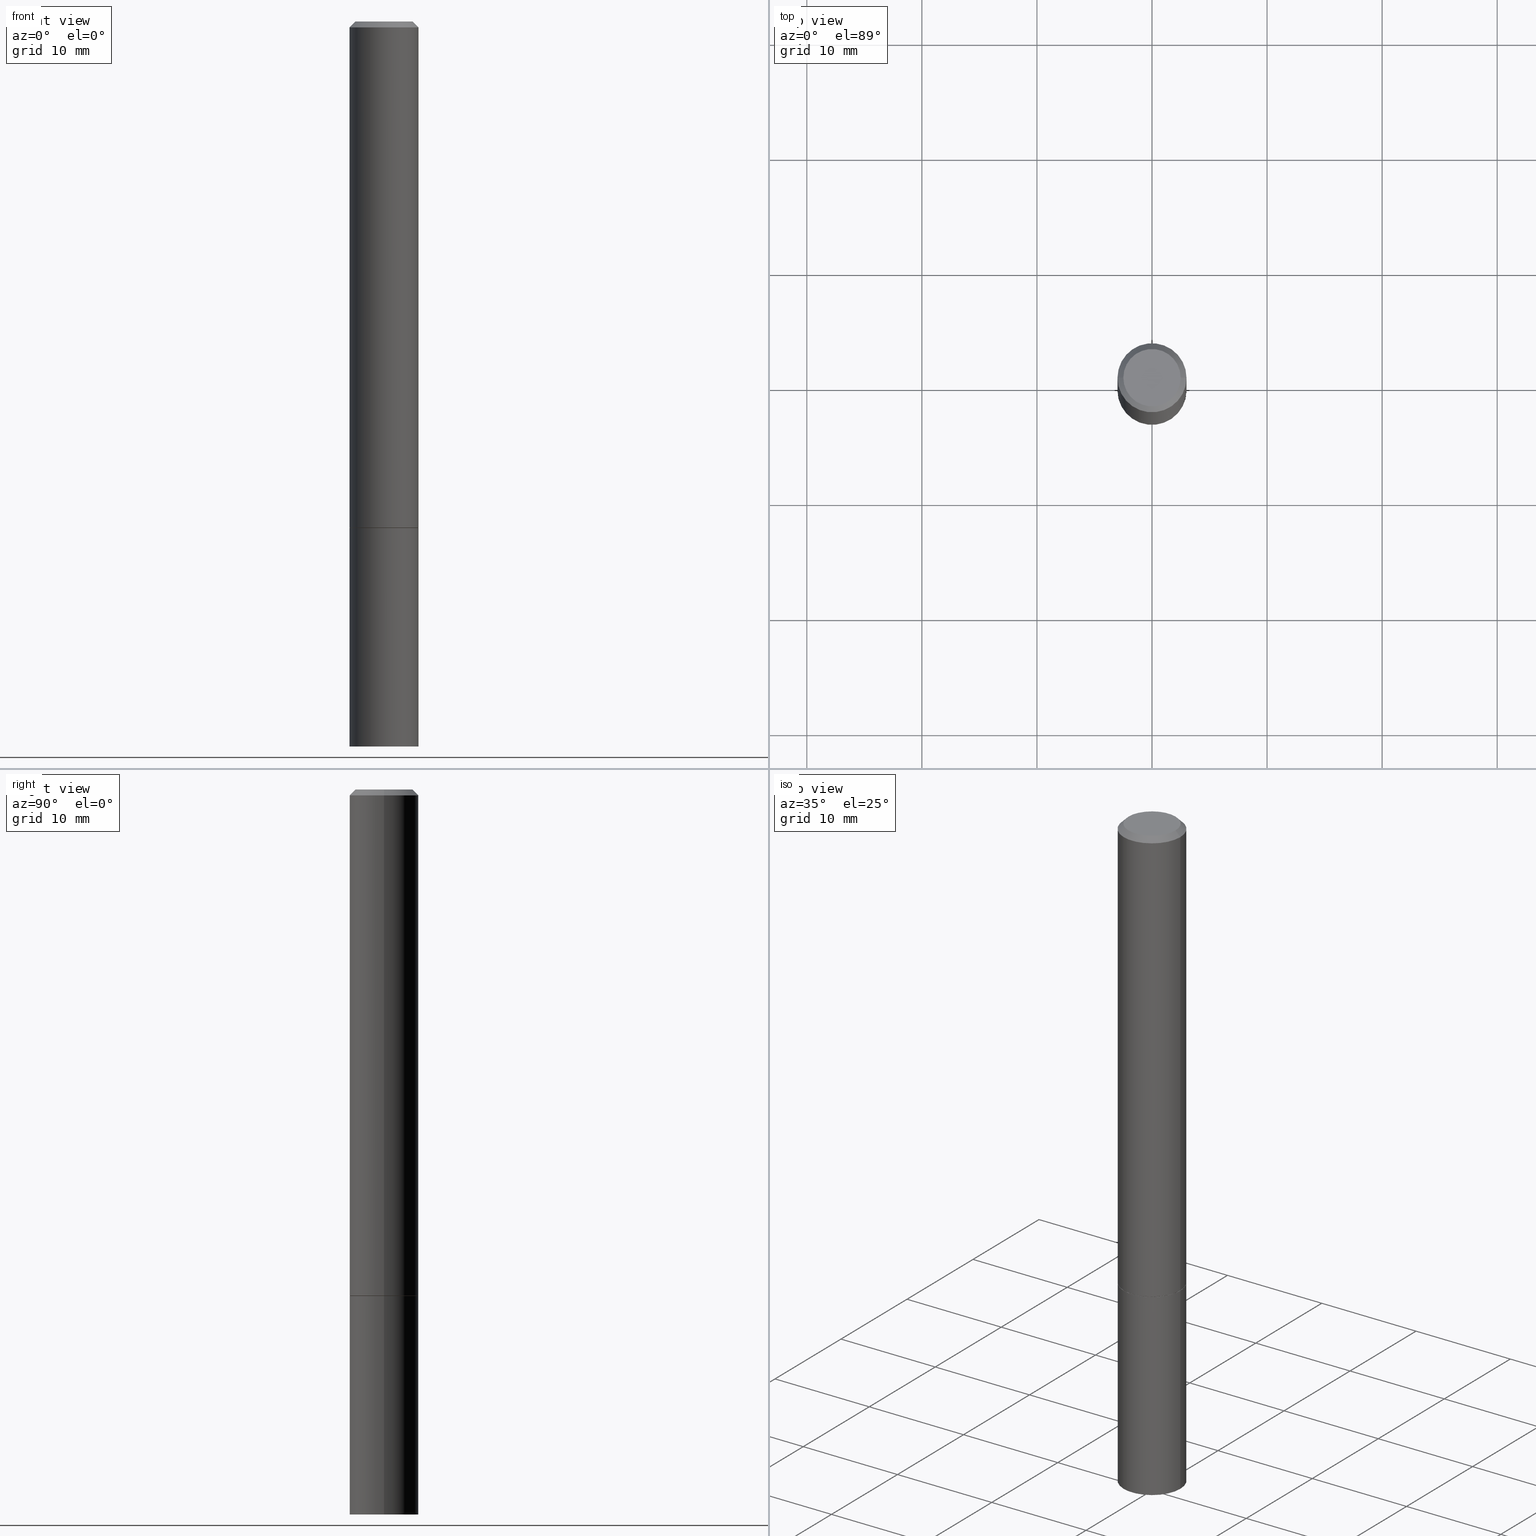
[diagram: canonical four-view strip — front | top / right | iso, engineering-drawing reading convention]
A machine part, canonical four-view strip (front | top / right | iso — engineering-drawing reading convention). The complete STEP part file that produces these views, byte-faithful:
ISO-10303-21;
HEADER;
FILE_DESCRIPTION (( 'STEP AP203' ),
    '1' );
FILE_NAME ('45100.STEP',
    '2024-02-28T08:50:11',
    ( '' ),
    ( '' ),
    'SwSTEP 2.0',
    'SolidWorks 2023',
    '' );
FILE_SCHEMA (( 'CONFIG_CONTROL_DESIGN' ));
ENDSEC;

DATA;
#1 = ORIENTED_EDGE ( 'NONE', *, *, #19, .T. ) ;
#2 =( NAMED_UNIT ( * ) PLANE_ANGLE_UNIT ( ) SI_UNIT ( $, .RADIAN. ) );
#3 = MANIFOLD_SOLID_BREP ( 'Body-Move/Copy2[2]', #141 ) ;
#4 = ORIENTED_EDGE ( 'NONE', *, *, #328, .F. ) ;
#5 = DIRECTION ( 'NONE',  ( 1.000000000000000000, -6.982962677686266711E-15, 4.876176775795935793E-29 ) ) ;
#6 = CARTESIAN_POINT ( 'NONE',  ( 0.1181000000000000383, -9.484609056967403598E-15, -2.480300000000000171 ) ) ;
#7 = EDGE_CURVE ( 'NONE', #196, #22, #40, .T. ) ;
#8 =( NAMED_UNIT ( * ) SI_UNIT ( $, .STERADIAN. ) SOLID_ANGLE_UNIT ( ) );
#9 = CARTESIAN_POINT ( 'NONE',  ( 4.890937612370304688E-31, -6.982962677686337215E-17, -0.02000000000000013226 ) ) ;
#10 = SECURITY_CLASSIFICATION_LEVEL ( 'unclassified' ) ;
#11 = AXIS2_PLACEMENT_3D ( 'NONE', #316, #186, #152 ) ;
#12 = MECHANICAL_CONTEXT ( 'NONE', #164, 'mechanical' ) ;
#13 = ORIENTED_EDGE ( 'NONE', *, *, #221, .F. ) ;
#14 = PLANE ( 'NONE',  #167 ) ;
#15 = CARTESIAN_POINT ( 'NONE',  ( -0.1181000000000000383, -2.218164663425320121E-15, -1.731300000000000283 ) ) ;
#16 = CONICAL_SURFACE ( 'NONE', #102, 0.1180999999999998301, 0.7853981633974477239 ) ;
#17 = CIRCLE ( 'NONE', #227, 0.09809999999999977072 ) ;
#18 = CARTESIAN_POINT ( 'NONE',  ( 1.148236555768741665E-45, -1.639377487418492057E-31, -4.695363739110452099E-17 ) ) ;
#19 = EDGE_CURVE ( 'NONE', #294, #112, #90, .T. ) ;
#20 = EDGE_CURVE ( 'NONE', #307, #296, #280, .T. ) ;
#21 = DIRECTION ( 'NONE',  ( -1.000000000000000000, 6.982962677686266711E-15, 0.000000000000000000 ) ) ;
#22 = VERTEX_POINT ( 'NONE', #243 ) ;
#23 = CARTESIAN_POINT ( 'NONE',  ( 1.148236555768741665E-45, -1.639377487418492057E-31, -4.695363739110452099E-17 ) ) ;
#24 = DIRECTION ( 'NONE',  ( -2.445468806185136597E-29, 3.491481338843145583E-15, 1.000000000000000000 ) ) ;
#25 = CONICAL_SURFACE ( 'NONE', #260, 0.1180999999999998301, 0.7853981633974477239 ) ;
#26 = EDGE_CURVE ( 'NONE', #22, #196, #123, .T. ) ;
#27 = EDGE_LOOP ( 'NONE', ( #300, #66, #256, #366 ) ) ;
#28 = DIRECTION ( 'NONE',  ( 1.000000000000000000, -6.982962677686266711E-15, 0.000000000000000000 ) ) ;
#29 = DATE_AND_TIME ( #207, #69 ) ;
#30 = ORIENTED_EDGE ( 'NONE', *, *, #230, .T. ) ;
#31 = VECTOR ( 'NONE', #43, 39.37007874015748143 ) ;
#32 = VECTOR ( 'NONE', #246, 39.37007874015748143 ) ;
#33 = PERSON_AND_ORGANIZATION ( #188, #354 ) ;
#34 = APPROVAL_STATUS ( 'not_yet_approved' ) ;
#35 = DIRECTION ( 'NONE',  ( -2.445468806185136877E-29, 3.491481338843145188E-15, 1.000000000000000000 ) ) ;
#36 = CC_DESIGN_APPROVAL ( #101, ( #257 ) ) ;
#37 = PERSON_AND_ORGANIZATION_ROLE ( 'design_owner' ) ;
#38 = APPROVAL_DATE_TIME ( #179, #361 ) ;
#39 = DIRECTION ( 'NONE',  ( -2.445468806185136597E-29, 3.491481338843145583E-15, 1.000000000000000000 ) ) ;
#40 = CIRCLE ( 'NONE', #157, 0.1180999999999998301 ) ;
#41 = CARTESIAN_POINT ( 'NONE',  ( -0.1181000000000000383, -6.514956173072641193E-15, -1.732300000000000617 ) ) ;
#42 = EDGE_CURVE ( 'NONE', #296, #311, #321, .T. ) ;
#43 = DIRECTION ( 'NONE',  ( -0.7071067811864267805, 7.493145998869918709E-15, 0.7071067811866682540 ) ) ;
#44 = AXIS2_PLACEMENT_3D ( 'NONE', #74, #233, #79 ) ;
#45 = DIRECTION ( 'NONE',  ( -1.000000000000000000, 6.982962677686265922E-15, -4.876176775795935793E-29 ) ) ;
#46 = CC_DESIGN_PERSON_AND_ORGANIZATION_ASSIGNMENT ( #171, #351, ( #257 ) ) ;
#47 =( LENGTH_UNIT ( ) NAMED_UNIT ( * ) SI_UNIT ( $, .METRE. ) );
#48 = DIRECTION ( 'NONE',  ( 1.000000000000000000, -6.982962677686262766E-15, 0.000000000000000000 ) ) ;
#49 = ADVANCED_FACE ( 'NONE', ( #53 ), #145, .T. ) ;
#50 = AXIS2_PLACEMENT_3D ( 'NONE', #55, #178, #365 ) ;
#51 = EDGE_LOOP ( 'NONE', ( #242, #213 ) ) ;
#52 = ORIENTED_EDGE ( 'NONE', *, *, #67, .T. ) ;
#53 = FACE_OUTER_BOUND ( 'NONE', #195, .T. ) ;
#54 = EDGE_CURVE ( 'NONE', #73, #204, #214, .T. ) ;
#55 = CARTESIAN_POINT ( 'NONE',  ( 4.236285612954513513E-29, -6.048293123277983445E-15, -1.732300000000000617 ) ) ;
#56 = LOCAL_TIME ( 3, 50, 11.00000000000000000, #87 ) ;
#57 = APPLICATION_CONTEXT ( 'configuration controlled 3d designs of mechanical parts and assemblies' ) ;
#58 = DESIGN_CONTEXT ( 'detailed design', #57, 'design' ) ;
#59 = DIRECTION ( 'NONE',  ( 2.438088387897960049E-29, -3.491481338843145188E-15, -1.000000000000000000 ) ) ;
#60 = DIRECTION ( 'NONE',  ( 1.000000000000000000, -6.982962677686266711E-15, 0.000000000000000000 ) ) ;
#61 = CALENDAR_DATE ( 2024, 28, 2 ) ;
#62 = CC_DESIGN_PERSON_AND_ORGANIZATION_ASSIGNMENT ( #271, #299, ( #261 ) ) ;
#63 = DIRECTION ( 'NONE',  ( -2.445468806185136597E-29, 3.491481338843145583E-15, 1.000000000000000000 ) ) ;
#64 = COORDINATED_UNIVERSAL_TIME_OFFSET ( 5, 0, .BEHIND. ) ;
#65 = CARTESIAN_POINT ( 'NONE',  ( 4.236285612954513513E-29, -6.048293123277983445E-15, -1.732300000000000617 ) ) ;
#66 = ORIENTED_EDGE ( 'NONE', *, *, #292, .T. ) ;
#67 = EDGE_CURVE ( 'NONE', #311, #353, #345, .T. ) ;
#68 = CONICAL_SURFACE ( 'NONE', #293, 0.1171000000000000235, 0.7853981633972775267 ) ;
#69 = LOCAL_TIME ( 3, 50, 11.00000000000000000, #295 ) ;
#70 = CARTESIAN_POINT ( 'NONE',  ( 0.1181000000000000383, -6.872981015512730918E-15, -1.732300000000000617 ) ) ;
#71 = ADVANCED_FACE ( 'NONE', ( #166 ), #25, .T. ) ;
#72 = CARTESIAN_POINT ( 'NONE',  ( 4.890937612370304688E-31, -6.982962677686337215E-17, -0.02000000000000013226 ) ) ;
#73 = VERTEX_POINT ( 'NONE', #319 ) ;
#74 = CARTESIAN_POINT ( 'NONE',  ( 0.000000000000000000, 0.000000000000000000, 0.000000000000000000 ) ) ;
#75 = DIRECTION ( 'NONE',  ( 2.445468806185136597E-29, -3.491481338843145583E-15, -1.000000000000000000 ) ) ;
#76 = ADVANCED_FACE ( 'NONE', ( #360 ), #16, .T. ) ;
#77 = ORIENTED_EDGE ( 'NONE', *, *, #137, .F. ) ;
#78 = EDGE_LOOP ( 'NONE', ( #115, #100, #344, #138 ) ) ;
#79 = DIRECTION ( 'NONE',  ( 1.000000000000000000, -6.982962677686266711E-15, 4.876176775795935793E-29 ) ) ;
#80 = CC_DESIGN_APPROVAL ( #156, ( #208 ) ) ;
#81 = CARTESIAN_POINT ( 'NONE',  ( 4.236285612954513513E-29, -6.048293123277983445E-15, -1.732300000000000617 ) ) ;
#82 = APPROVAL_ROLE ( '' ) ;
#83 = CARTESIAN_POINT ( 'NONE',  ( 6.850286386810210746E-16, 0.09809999999999977072, -3.659911380360640180E-16 ) ) ;
#84 = PRODUCT_RELATED_PRODUCT_CATEGORY ( 'detail', '', ( #183 ) ) ;
#85 = VECTOR ( 'NONE', #127, 39.37007874015748143 ) ;
#86 = CIRCLE ( 'NONE', #282, 0.1171000000000000235 ) ;
#87 = COORDINATED_UNIVERSAL_TIME_OFFSET ( 5, 0, .BEHIND. ) ;
#88 = PRODUCT_DEFINITION_SHAPE ( 'NONE', 'NONE',  #257 ) ;
#89 = ORIENTED_EDGE ( 'NONE', *, *, #20, .T. ) ;
#90 = CIRCLE ( 'NONE', #182, 0.09809999999999977072 ) ;
#91 = DATE_TIME_ROLE ( 'creation_date' ) ;
#92 = LOCAL_TIME ( 3, 50, 11.00000000000000000, #64 ) ;
#93 = DATE_AND_TIME ( #61, #56 ) ;
#94 = DIRECTION ( 'NONE',  ( 0.000000000000000000, 0.000000000000000000, 1.000000000000000000 ) ) ;
#95 = ADVANCED_FACE ( 'NONE', ( #107 ), #189, .T. ) ;
#96 = CC_DESIGN_PERSON_AND_ORGANIZATION_ASSIGNMENT ( #249, #334, ( #208 ) ) ;
#97 = AXIS2_PLACEMENT_3D ( 'NONE', #191, #286, #116 ) ;
#98 = CARTESIAN_POINT ( 'NONE',  ( -0.1181000000000000383, -6.514956173072641193E-15, -2.480300000000000171 ) ) ;
#99 = PERSON_AND_ORGANIZATION ( #188, #354 ) ;
#100 = ORIENTED_EDGE ( 'NONE', *, *, #254, .F. ) ;
#101 = APPROVAL ( #34, 'UNSPECIFIED' ) ;
#102 = AXIS2_PLACEMENT_3D ( 'NONE', #226, #315, #364 ) ;
#103 = AXIS2_PLACEMENT_3D ( 'NONE', #323, #267, #176 ) ;
#104 = DIRECTION ( 'NONE',  ( -2.445468806185136597E-29, 3.491481338843145583E-15, 1.000000000000000000 ) ) ;
#105 = DIRECTION ( 'NONE',  ( 0.7071067811865471286, -7.319954787623254468E-15, -0.7071067811865479058 ) ) ;
#106 = LINE ( 'NONE', #314, #85 ) ;
#107 = FACE_OUTER_BOUND ( 'NONE', #27, .T. ) ;
#108 = CARTESIAN_POINT ( 'NONE',  ( 0.000000000000000000, 0.000000000000000000, 0.000000000000000000 ) ) ;
#109 = DIRECTION ( 'NONE',  ( 1.000000000000000000, -6.982962677686266711E-15, 4.877161320636778563E-29 ) ) ;
#110 = AXIS2_PLACEMENT_3D ( 'NONE', #155, #94, #218 ) ;
#111 = EDGE_LOOP ( 'NONE', ( #343, #250, #144, #170 ) ) ;
#112 = VERTEX_POINT ( 'NONE', #163 ) ;
#113 = LINE ( 'NONE', #270, #31 ) ;
#114 = EDGE_CURVE ( 'NONE', #349, #73, #106, .T. ) ;
#115 = ORIENTED_EDGE ( 'NONE', *, *, #230, .F. ) ;
#116 = DIRECTION ( 'NONE',  ( 1.000000000000000000, -6.982962677686270655E-15, 0.000000000000000000 ) ) ;
#117 = CARTESIAN_POINT ( 'NONE',  ( 0.000000000000000000, 0.000000000000000000, 0.000000000000000000 ) ) ;
#118 = CALENDAR_DATE ( 2024, 28, 2 ) ;
#119 = DIMENSIONAL_EXPONENTS ( 1.000000000000000000, 0.000000000000000000, 0.000000000000000000, 0.000000000000000000, 0.000000000000000000, 0.000000000000000000, 0.000000000000000000 ) ;
#120 = FACE_OUTER_BOUND ( 'NONE', #320, .T. ) ;
#121 = ORIENTED_EDGE ( 'NONE', *, *, #221, .T. ) ;
#122 = ADVANCED_FACE ( 'NONE', ( #284 ), #68, .T. ) ;
#123 = CIRCLE ( 'NONE', #225, 0.1180999999999998301 ) ;
#124 = AXIS2_PLACEMENT_3D ( 'NONE', #125, #217, #342 ) ;
#125 = CARTESIAN_POINT ( 'NONE',  ( 6.065496279980994755E-29, -8.659921164732655335E-15, -2.480300000000000171 ) ) ;
#126 = AXIS2_PLACEMENT_3D ( 'NONE', #139, #174, #240 ) ;
#127 = DIRECTION ( 'NONE',  ( 0.7071067811864267805, -2.468850131080992517E-15, 0.7071067811866682540 ) ) ;
#128 = CARTESIAN_POINT ( 'NONE',  ( 4.236285612954513513E-29, -6.048293123277983445E-15, -1.732300000000000617 ) ) ;
#129 = CARTESIAN_POINT ( 'NONE',  ( 4.236285612954513513E-29, -6.048293123277983445E-15, -1.732300000000000617 ) ) ;
#130 = FACE_OUTER_BOUND ( 'NONE', #224, .T. ) ;
#131 = DIRECTION ( 'NONE',  ( 1.000000000000000000, -6.982962677686262766E-15, 0.000000000000000000 ) ) ;
#132 = APPROVAL_STATUS ( 'not_yet_approved' ) ;
#133 = CARTESIAN_POINT ( 'NONE',  ( 0.1180999999999998301, -8.800544403136799500E-16, -0.02000000000000013226 ) ) ;
#134 = AXIS2_PLACEMENT_3D ( 'NONE', #81, #24, #131 ) ;
#135 = APPROVAL_DATE_TIME ( #185, #101 ) ;
#136 = ORIENTED_EDGE ( 'NONE', *, *, #19, .F. ) ;
#137 = EDGE_CURVE ( 'NONE', #204, #73, #235, .T. ) ;
#138 = ORIENTED_EDGE ( 'NONE', *, *, #26, .T. ) ;
#139 = CARTESIAN_POINT ( 'NONE',  ( 4.233840144148327350E-29, -6.044801641939138860E-15, -1.731300000000000283 ) ) ;
#140 = ADVANCED_FACE ( 'NONE', ( #231 ), #202, .T. ) ;
#141 = CLOSED_SHELL ( 'NONE', ( #122, #95, #71, #76, #158, #198, #350, #339 ) ) ;
#142 = VECTOR ( 'NONE', #35, 39.37007874015748143 ) ;
#143 = EDGE_LOOP ( 'NONE', ( #298, #265, #347, #162 ) ) ;
#144 = ORIENTED_EDGE ( 'NONE', *, *, #248, .T. ) ;
#145 = CYLINDRICAL_SURFACE ( 'NONE', #252, 0.1181000000000000383 ) ;
#146 = APPROVAL_ROLE ( '' ) ;
#147 = VECTOR ( 'NONE', #105, 39.37007874015748143 ) ;
#148 = COORDINATED_UNIVERSAL_TIME_OFFSET ( 5, 0, .BEHIND. ) ;
#149 = CALENDAR_DATE ( 2024, 28, 2 ) ;
#150 = DIRECTION ( 'NONE',  ( -1.000000000000000000, 6.982962677686265922E-15, -4.876176775795935793E-29 ) ) ;
#151 = APPLICATION_PROTOCOL_DEFINITION ( 'international standard', 'config_control_design', 1994, #164 ) ;
#152 = DIRECTION ( 'NONE',  ( 1.000000000000000000, -6.982962677686270655E-15, 0.000000000000000000 ) ) ;
#153 = DATE_AND_TIME ( #306, #92 ) ;
#154 = DIRECTION ( 'NONE',  ( 1.000000000000000000, -6.982962677686270655E-15, 0.000000000000000000 ) ) ;
#155 = CARTESIAN_POINT ( 'NONE',  ( 0.000000000000000000, 0.000000000000000000, 0.000000000000000000 ) ) ;
#156 = APPROVAL ( #132, 'UNSPECIFIED' ) ;
#157 = AXIS2_PLACEMENT_3D ( 'NONE', #289, #104, #28 ) ;
#158 = ADVANCED_FACE ( 'NONE', ( #283 ), #276, .T. ) ;
#159 = DIRECTION ( 'NONE',  ( -2.445468806185136877E-29, 3.491481338843145188E-15, 1.000000000000000000 ) ) ;
#160 = EDGE_CURVE ( 'NONE', #200, #204, #113, .T. ) ;
#161 = LINE ( 'NONE', #287, #356 ) ;
#162 = ORIENTED_EDGE ( 'NONE', *, *, #42, .F. ) ;
#163 = CARTESIAN_POINT ( 'NONE',  ( -0.09809999999999977072, 7.199434520694523292E-16, -4.695363739110943904E-17 ) ) ;
#164 = APPLICATION_CONTEXT ( 'configuration controlled 3d designs of mechanical parts and assemblies' ) ;
#165 = DIRECTION ( 'NONE',  ( -2.445468806185136597E-29, 3.491481338843145583E-15, 1.000000000000000000 ) ) ;
#166 = FACE_OUTER_BOUND ( 'NONE', #272, .T. ) ;
#167 = AXIS2_PLACEMENT_3D ( 'NONE', #341, #184, #150 ) ;
#168 = CC_DESIGN_PERSON_AND_ORGANIZATION_ASSIGNMENT ( #33, #216, ( #261 ) ) ;
#169 = EDGE_LOOP ( 'NONE', ( #52, #239 ) ) ;
#170 = ORIENTED_EDGE ( 'NONE', *, *, #26, .F. ) ;
#171 = PERSON_AND_ORGANIZATION ( #188, #354 ) ;
#172 = ORIENTED_EDGE ( 'NONE', *, *, #219, .F. ) ;
#173 = CC_DESIGN_PERSON_AND_ORGANIZATION_ASSIGNMENT ( #244, #37, ( #183 ) ) ;
#174 = DIRECTION ( 'NONE',  ( -2.445468806185136597E-29, 3.491481338843145583E-15, 1.000000000000000000 ) ) ;
#175 = AXIS2_PLACEMENT_3D ( 'NONE', #117, #241, #180 ) ;
#176 = DIRECTION ( 'NONE',  ( 1.000000000000000000, -6.982962677686262766E-15, 0.000000000000000000 ) ) ;
#177 = ADVANCED_FACE ( 'NONE', ( #358 ), #14, .F. ) ;
#178 = DIRECTION ( 'NONE',  ( -2.438088387897960049E-29, 3.491481338843145188E-15, 1.000000000000000000 ) ) ;
#179 = DATE_AND_TIME ( #149, #192 ) ;
#180 = DIRECTION ( 'NONE',  ( 1.000000000000000000, -6.982962677686266711E-15, 4.876176775795935793E-29 ) ) ;
#181 = PERSON_AND_ORGANIZATION ( #188, #354 ) ;
#182 = AXIS2_PLACEMENT_3D ( 'NONE', #23, #229, #109 ) ;
#183 = PRODUCT ( '45100', '45100', '', ( #12 ) ) ;
#184 = DIRECTION ( 'NONE',  ( 2.438088387897960049E-29, -3.491481338843145188E-15, -1.000000000000000000 ) ) ;
#185 = DATE_AND_TIME ( #118, #325 ) ;
#186 = DIRECTION ( 'NONE',  ( -2.445468806185136597E-29, 3.491481338843145583E-15, 1.000000000000000000 ) ) ;
#187 = ORIENTED_EDGE ( 'NONE', *, *, #54, .F. ) ;
#188 = PERSON ( 'UNSPECIFIED', 'UNSPECIFIED', 'UNSPECIFIED', ('UNSPECIFIED'), ('UNSPECIFIED'), ('UNSPECIFIED') ) ;
#189 = CYLINDRICAL_SURFACE ( 'NONE', #44, 0.1180999999999999273 ) ;
#190 = ORIENTED_EDGE ( 'NONE', *, *, #114, .F. ) ;
#191 = CARTESIAN_POINT ( 'NONE',  ( 6.065496279980994755E-29, -8.659921164732655335E-15, -2.480300000000000171 ) ) ;
#192 = LOCAL_TIME ( 3, 50, 11.00000000000000000, #352 ) ;
#193 = PLANE ( 'NONE',  #278 ) ;
#194 = ORIENTED_EDGE ( 'NONE', *, *, #328, .T. ) ;
#195 = EDGE_LOOP ( 'NONE', ( #312, #89, #238, #228 ) ) ;
#196 = VERTEX_POINT ( 'NONE', #335 ) ;
#197 = VECTOR ( 'NONE', #209, 39.37007874015748143 ) ;
#198 = ADVANCED_FACE ( 'NONE', ( #120 ), #362, .T. ) ;
#199 = DIRECTION ( 'NONE',  ( -1.000000000000000000, 6.982962677686265922E-15, -4.876176775795935793E-29 ) ) ;
#200 = VERTEX_POINT ( 'NONE', #275 ) ;
#201 = ORIENTED_EDGE ( 'NONE', *, *, #254, .T. ) ;
#202 = CYLINDRICAL_SURFACE ( 'NONE', #175, 0.1181000000000000383 ) ;
#203 = CARTESIAN_POINT ( 'NONE',  ( 0.09809999999999977072, -7.765346469475328709E-16, -4.695363739109941188E-17 ) ) ;
#204 = VERTEX_POINT ( 'NONE', #15 ) ;
#205 = DIRECTION ( 'NONE',  ( -2.445468806185136597E-29, 3.491481338843145583E-15, 1.000000000000000000 ) ) ;
#206 = UNCERTAINTY_MEASURE_WITH_UNIT (LENGTH_MEASURE( 1.000000000000000082E-05 ), #234, 'distance_accuracy_value', 'NONE');
#207 = CALENDAR_DATE ( 2024, 28, 2 ) ;
#208 = SECURITY_CLASSIFICATION ( '', '', #10 ) ;
#209 = DIRECTION ( 'NONE',  ( -2.445468806185136877E-29, 3.491481338843145188E-15, 1.000000000000000000 ) ) ;
#210 = EDGE_CURVE ( 'NONE', #296, #307, #269, .T. ) ;
#211 = APPLICATION_PROTOCOL_DEFINITION ( 'international standard', 'config_control_design', 1994, #57 ) ;
#212 = CARTESIAN_POINT ( 'NONE',  ( 0.1181000000000000383, -8.246878922347483612E-16, 5.758764772215001842E-30 ) ) ;
#213 = ORIENTED_EDGE ( 'NONE', *, *, #20, .F. ) ;
#214 = CIRCLE ( 'NONE', #126, 0.1181000000000000383 ) ;
#215 = APPROVAL_PERSON_ORGANIZATION ( #181, #101, #146 ) ;
#216 = PERSON_AND_ORGANIZATION_ROLE ( 'design_supplier' ) ;
#217 = DIRECTION ( 'NONE',  ( -2.445468806185136597E-29, 3.491481338843145583E-15, 1.000000000000000000 ) ) ;
#218 = DIRECTION ( 'NONE',  ( 1.000000000000000000, 0.000000000000000000, 0.000000000000000000 ) ) ;
#219 = EDGE_CURVE ( 'NONE', #112, #22, #232, .T. ) ;
#220 = VECTOR ( 'NONE', #329, 39.37007874015748143 ) ;
#221 = EDGE_CURVE ( 'NONE', #349, #200, #346, .T. ) ;
#222 = CARTESIAN_POINT ( 'NONE',  ( 8.246878922348089063E-16, 0.1180999999999913785, -2.480300000000001059 ) ) ;
#223 = ADVANCED_BREP_SHAPE_REPRESENTATION ( '45100', ( #262, #3, #110 ), #313 ) ;
#224 = EDGE_LOOP ( 'NONE', ( #201, #1 ) ) ;
#225 = AXIS2_PLACEMENT_3D ( 'NONE', #9, #205, #60 ) ;
#226 = CARTESIAN_POINT ( 'NONE',  ( 4.890937612370304688E-31, -6.982962677686337215E-17, -0.02000000000000013226 ) ) ;
#227 = AXIS2_PLACEMENT_3D ( 'NONE', #18, #63, #268 ) ;
#228 = ORIENTED_EDGE ( 'NONE', *, *, #302, .F. ) ;
#229 = DIRECTION ( 'NONE',  ( -2.445468806185136597E-29, 3.491481338843145583E-15, 1.000000000000000000 ) ) ;
#230 = EDGE_CURVE ( 'NONE', #294, #196, #258, .T. ) ;
#231 = FACE_OUTER_BOUND ( 'NONE', #143, .T. ) ;
#232 = LINE ( 'NONE', #290, #32 ) ;
#233 = DIRECTION ( 'NONE',  ( -2.445468806185136597E-29, 3.491481338843145583E-15, 1.000000000000000000 ) ) ;
#234 =( CONVERSION_BASED_UNIT ( 'INCH', #266 ) LENGTH_UNIT ( ) NAMED_UNIT ( #119 ) );
#235 = CIRCLE ( 'NONE', #309, 0.1181000000000000383 ) ;
#236 = AXIS2_PLACEMENT_3D ( 'NONE', #222, #310, #45 ) ;
#237 = CARTESIAN_POINT ( 'NONE',  ( 0.1171000000000000235, -6.865998052835045693E-15, -1.732300000000000617 ) ) ;
#238 = ORIENTED_EDGE ( 'NONE', *, *, #42, .T. ) ;
#239 = ORIENTED_EDGE ( 'NONE', *, *, #302, .T. ) ;
#240 = DIRECTION ( 'NONE',  ( 1.000000000000000000, -6.982962677686262766E-15, 0.000000000000000000 ) ) ;
#241 = DIRECTION ( 'NONE',  ( -2.445468806185136597E-29, 3.491481338843145583E-15, 1.000000000000000000 ) ) ;
#242 = ORIENTED_EDGE ( 'NONE', *, *, #210, .F. ) ;
#243 = CARTESIAN_POINT ( 'NONE',  ( -0.1180999999999998301, 7.548582654578835839E-16, -0.02000000000000013226 ) ) ;
#244 = PERSON_AND_ORGANIZATION ( #188, #354 ) ;
#245 = CIRCLE ( 'NONE', #103, 0.1181000000000000383 ) ;
#246 = DIRECTION ( 'NONE',  ( -0.7071067811865471286, 2.468850131082252722E-15, -0.7071067811865479058 ) ) ;
#247 = PERSON_AND_ORGANIZATION ( #188, #354 ) ;
#248 = EDGE_CURVE ( 'NONE', #73, #196, #263, .T. ) ;
#249 = PERSON_AND_ORGANIZATION ( #188, #354 ) ;
#250 = ORIENTED_EDGE ( 'NONE', *, *, #137, .T. ) ;
#251 = DIRECTION ( 'NONE',  ( 1.000000000000000000, -6.982962677686270655E-15, 0.000000000000000000 ) ) ;
#252 = AXIS2_PLACEMENT_3D ( 'NONE', #324, #327, #5 ) ;
#253 = CC_DESIGN_APPROVAL ( #361, ( #261 ) ) ;
#254 = EDGE_CURVE ( 'NONE', #112, #294, #17, .T. ) ;
#255 = DIRECTION ( 'NONE',  ( 1.000000000000000000, -6.982962677686270655E-15, 0.000000000000000000 ) ) ;
#256 = ORIENTED_EDGE ( 'NONE', *, *, #7, .F. ) ;
#257 = PRODUCT_DEFINITION ( 'UNKNOWN', '', #261, #58 ) ;
#258 = LINE ( 'NONE', #133, #147 ) ;
#259 = LINE ( 'NONE', #337, #220 ) ;
#260 = AXIS2_PLACEMENT_3D ( 'NONE', #72, #75, #21 ) ;
#261 = PRODUCT_DEFINITION_FORMATION_WITH_SPECIFIED_SOURCE ( 'ANY', '', #183, .NOT_KNOWN. ) ;
#262 = MANIFOLD_SOLID_BREP ( 'Body-Move/Copy2[1]', #277 ) ;
#263 = LINE ( 'NONE', #338, #142 ) ;
#264 = FACE_OUTER_BOUND ( 'NONE', #273, .T. ) ;
#265 = ORIENTED_EDGE ( 'NONE', *, *, #317, .T. ) ;
#266 = LENGTH_MEASURE_WITH_UNIT ( LENGTH_MEASURE( 0.02539999999999999897 ), #47 );
#267 = DIRECTION ( 'NONE',  ( -2.445468806185136597E-29, 3.491481338843145583E-15, 1.000000000000000000 ) ) ;
#268 = DIRECTION ( 'NONE',  ( 1.000000000000000000, -6.982962677686266711E-15, 4.877161320636778563E-29 ) ) ;
#269 = CIRCLE ( 'NONE', #124, 0.1181000000000000383 ) ;
#270 = CARTESIAN_POINT ( 'NONE',  ( -0.1171000000000000235, -5.216247579702905467E-15, -1.732300000000000617 ) ) ;
#271 = PERSON_AND_ORGANIZATION ( #188, #354 ) ;
#272 = EDGE_LOOP ( 'NONE', ( #136, #30, #363, #172 ) ) ;
#273 = EDGE_LOOP ( 'NONE', ( #13, #4 ) ) ;
#274 = DATE_TIME_ROLE ( 'classification_date' ) ;
#275 = CARTESIAN_POINT ( 'NONE',  ( -0.1171000000000000235, -5.210949125354683065E-15, -1.732300000000000617 ) ) ;
#276 = CYLINDRICAL_SURFACE ( 'NONE', #340, 0.1180999999999999273 ) ;
#277 = CLOSED_SHELL ( 'NONE', ( #140, #331, #177, #49 ) ) ;
#278 = AXIS2_PLACEMENT_3D ( 'NONE', #83, #59, #199 ) ;
#279 = DIRECTION ( 'NONE',  ( -2.445468806185136597E-29, 3.491481338843145583E-15, 1.000000000000000000 ) ) ;
#280 = CIRCLE ( 'NONE', #97, 0.1181000000000000383 ) ;
#281 = ORIENTED_EDGE ( 'NONE', *, *, #160, .T. ) ;
#282 = AXIS2_PLACEMENT_3D ( 'NONE', #128, #279, #251 ) ;
#283 = FACE_OUTER_BOUND ( 'NONE', #111, .T. ) ;
#284 = FACE_OUTER_BOUND ( 'NONE', #330, .T. ) ;
#285 = PLANE ( 'NONE',  #236 ) ;
#286 = DIRECTION ( 'NONE',  ( -2.445468806185136597E-29, 3.491481338843145583E-15, 1.000000000000000000 ) ) ;
#287 = CARTESIAN_POINT ( 'NONE',  ( -0.1181000000000000383, 8.391509709326785915E-16, -5.809262341591045886E-30 ) ) ;
#288 = DIRECTION ( 'NONE',  ( 1.000000000000000000, -6.982962677686266711E-15, 4.876176775795935793E-29 ) ) ;
#289 = CARTESIAN_POINT ( 'NONE',  ( 4.890937612370304688E-31, -6.982962677686337215E-17, -0.02000000000000013226 ) ) ;
#290 = CARTESIAN_POINT ( 'NONE',  ( -0.1180999999999998301, 7.548582654578835839E-16, -0.02000000000000013226 ) ) ;
#291 = DIRECTION ( 'NONE',  ( -2.445468806185136597E-29, 3.491481338843145583E-15, 1.000000000000000000 ) ) ;
#292 = EDGE_CURVE ( 'NONE', #204, #22, #259, .T. ) ;
#293 = AXIS2_PLACEMENT_3D ( 'NONE', #129, #165, #255 ) ;
#294 = VERTEX_POINT ( 'NONE', #203 ) ;
#295 = COORDINATED_UNIVERSAL_TIME_OFFSET ( 5, 0, .BEHIND. ) ;
#296 = VERTEX_POINT ( 'NONE', #6 ) ;
#297 = APPROVAL_PERSON_ORGANIZATION ( #99, #156, #82 ) ;
#298 = ORIENTED_EDGE ( 'NONE', *, *, #210, .T. ) ;
#299 = PERSON_AND_ORGANIZATION_ROLE ( 'creator' ) ;
#300 = ORIENTED_EDGE ( 'NONE', *, *, #54, .T. ) ;
#301 = APPROVAL_DATE_TIME ( #29, #156 ) ;
#302 = EDGE_CURVE ( 'NONE', #353, #311, #245, .T. ) ;
#303 = CC_DESIGN_SECURITY_CLASSIFICATION ( #208, ( #261 ) ) ;
#304 = APPROVAL_STATUS ( 'not_yet_approved' ) ;
#305 = ORIENTED_EDGE ( 'NONE', *, *, #160, .F. ) ;
#306 = CALENDAR_DATE ( 2024, 28, 2 ) ;
#307 = VERTEX_POINT ( 'NONE', #98 ) ;
#308 = DIRECTION ( 'NONE',  ( -2.445468806185136597E-29, 3.491481338843145583E-15, 1.000000000000000000 ) ) ;
#309 = AXIS2_PLACEMENT_3D ( 'NONE', #359, #291, #48 ) ;
#310 = DIRECTION ( 'NONE',  ( 2.438088387897960049E-29, -3.491481338843145188E-15, -1.000000000000000000 ) ) ;
#311 = VERTEX_POINT ( 'NONE', #70 ) ;
#312 = ORIENTED_EDGE ( 'NONE', *, *, #317, .F. ) ;
#313 =( GEOMETRIC_REPRESENTATION_CONTEXT ( 3 ) GLOBAL_UNCERTAINTY_ASSIGNED_CONTEXT ( ( #206 ) ) GLOBAL_UNIT_ASSIGNED_CONTEXT ( ( #234, #2, #8 ) ) REPRESENTATION_CONTEXT ( 'NONE', 'WORKASPACE' ) );
#314 = CARTESIAN_POINT ( 'NONE',  ( 0.1171000000000000235, -6.865998052835045693E-15, -1.732300000000000617 ) ) ;
#315 = DIRECTION ( 'NONE',  ( 2.445468806185136597E-29, -3.491481338843145583E-15, -1.000000000000000000 ) ) ;
#316 = CARTESIAN_POINT ( 'NONE',  ( 4.236285612954513513E-29, -6.048293123277983445E-15, -1.732300000000000617 ) ) ;
#317 = EDGE_CURVE ( 'NONE', #307, #353, #161, .T. ) ;
#318 = AXIS2_PLACEMENT_3D ( 'NONE', #65, #39, #154 ) ;
#319 = CARTESIAN_POINT ( 'NONE',  ( 0.1181000000000000383, -6.869489534173886334E-15, -1.731300000000000283 ) ) ;
#320 = EDGE_LOOP ( 'NONE', ( #305, #194, #332, #77 ) ) ;
#321 = LINE ( 'NONE', #212, #197 ) ;
#322 = PLANE ( 'NONE',  #50 ) ;
#323 = CARTESIAN_POINT ( 'NONE',  ( 4.236285612954513513E-29, -6.048293123277983445E-15, -1.732300000000000617 ) ) ;
#324 = CARTESIAN_POINT ( 'NONE',  ( 0.000000000000000000, 0.000000000000000000, 0.000000000000000000 ) ) ;
#325 = LOCAL_TIME ( 3, 50, 11.00000000000000000, #148 ) ;
#326 = SHAPE_DEFINITION_REPRESENTATION ( #88, #223 ) ;
#327 = DIRECTION ( 'NONE',  ( -2.445468806185136597E-29, 3.491481338843145583E-15, 1.000000000000000000 ) ) ;
#328 = EDGE_CURVE ( 'NONE', #200, #349, #86, .T. ) ;
#329 = DIRECTION ( 'NONE',  ( -2.445468806185136877E-29, 3.491481338843145188E-15, 1.000000000000000000 ) ) ;
#330 = EDGE_LOOP ( 'NONE', ( #121, #281, #187, #190 ) ) ;
#331 = ADVANCED_FACE ( 'NONE', ( #357 ), #285, .T. ) ;
#332 = ORIENTED_EDGE ( 'NONE', *, *, #114, .T. ) ;
#333 = APPROVAL_PERSON_ORGANIZATION ( #247, #361, #336 ) ;
#334 = PERSON_AND_ORGANIZATION_ROLE ( 'classification_officer' ) ;
#335 = CARTESIAN_POINT ( 'NONE',  ( 0.1180999999999998301, -8.800544403136799500E-16, -0.02000000000000013226 ) ) ;
#336 = APPROVAL_ROLE ( '' ) ;
#337 = CARTESIAN_POINT ( 'NONE',  ( -0.1180999999999999273, 8.391509709326778027E-16, -5.809262341591040281E-30 ) ) ;
#338 = CARTESIAN_POINT ( 'NONE',  ( 0.1180999999999999273, -8.246878922347475723E-16, 5.758764772214996937E-30 ) ) ;
#339 = ADVANCED_FACE ( 'NONE', ( #130 ), #193, .F. ) ;
#340 = AXIS2_PLACEMENT_3D ( 'NONE', #108, #308, #288 ) ;
#341 = CARTESIAN_POINT ( 'NONE',  ( 8.246878922347905653E-16, 0.1180999999999939876, -1.732300000000001061 ) ) ;
#342 = DIRECTION ( 'NONE',  ( 1.000000000000000000, -6.982962677686270655E-15, 0.000000000000000000 ) ) ;
#343 = ORIENTED_EDGE ( 'NONE', *, *, #292, .F. ) ;
#344 = ORIENTED_EDGE ( 'NONE', *, *, #219, .T. ) ;
#345 = CIRCLE ( 'NONE', #134, 0.1181000000000000383 ) ;
#346 = CIRCLE ( 'NONE', #11, 0.1171000000000000235 ) ;
#347 = ORIENTED_EDGE ( 'NONE', *, *, #67, .F. ) ;
#348 = CC_DESIGN_DATE_AND_TIME_ASSIGNMENT ( #153, #274, ( #208 ) ) ;
#349 = VERTEX_POINT ( 'NONE', #237 ) ;
#350 = ADVANCED_FACE ( 'NONE', ( #264 ), #322, .F. ) ;
#351 = PERSON_AND_ORGANIZATION_ROLE ( 'creator' ) ;
#352 = COORDINATED_UNIVERSAL_TIME_OFFSET ( 5, 0, .BEHIND. ) ;
#353 = VERTEX_POINT ( 'NONE', #41 ) ;
#354 = ORGANIZATION ( 'UNSPECIFIED', 'UNSPECIFIED', '' ) ;
#355 = CC_DESIGN_DATE_AND_TIME_ASSIGNMENT ( #93, #91, ( #257 ) ) ;
#356 = VECTOR ( 'NONE', #159, 39.37007874015748143 ) ;
#357 = FACE_OUTER_BOUND ( 'NONE', #51, .T. ) ;
#358 = FACE_OUTER_BOUND ( 'NONE', #169, .T. ) ;
#359 = CARTESIAN_POINT ( 'NONE',  ( 4.233840144148327350E-29, -6.044801641939138860E-15, -1.731300000000000283 ) ) ;
#360 = FACE_OUTER_BOUND ( 'NONE', #78, .T. ) ;
#361 = APPROVAL ( #304, 'UNSPECIFIED' ) ;
#362 = CONICAL_SURFACE ( 'NONE', #318, 0.1171000000000000235, 0.7853981633972775267 ) ;
#363 = ORIENTED_EDGE ( 'NONE', *, *, #7, .T. ) ;
#364 = DIRECTION ( 'NONE',  ( -1.000000000000000000, 6.982962677686266711E-15, 0.000000000000000000 ) ) ;
#365 = DIRECTION ( 'NONE',  ( 1.000000000000000000, -6.982962677686265922E-15, 4.876176775795935793E-29 ) ) ;
#366 = ORIENTED_EDGE ( 'NONE', *, *, #248, .F. ) ;
ENDSEC;
END-ISO-10303-21;
